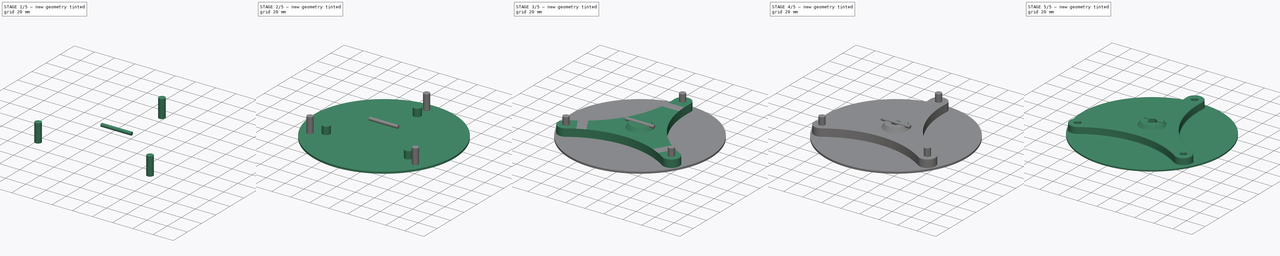
[diagram: build sequence overview — one tinted view per stage of 5, left to right]
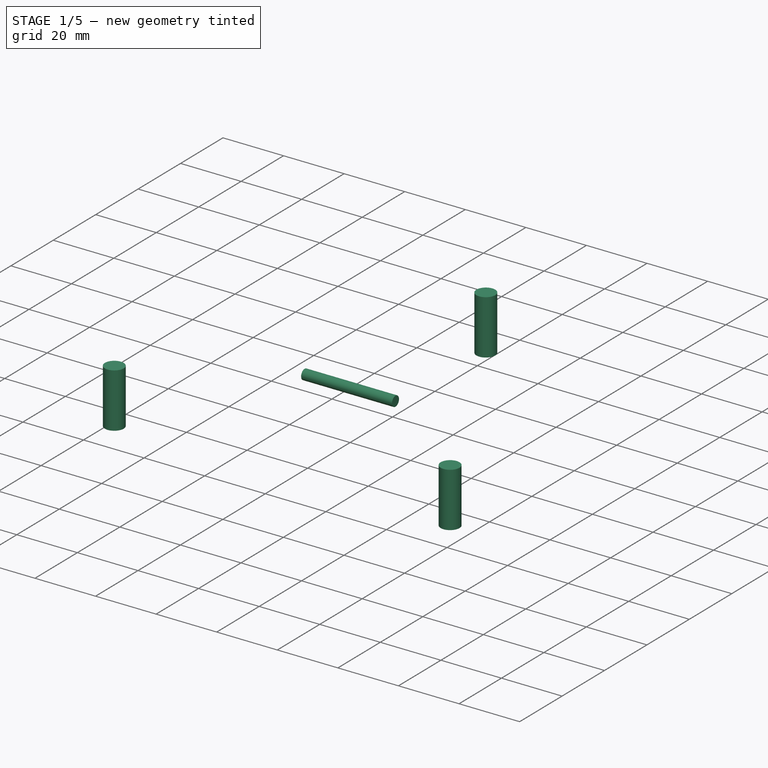
[diagram: stage 1 of 5 — iso view after this stage's code; geometry added in this stage tinted green]
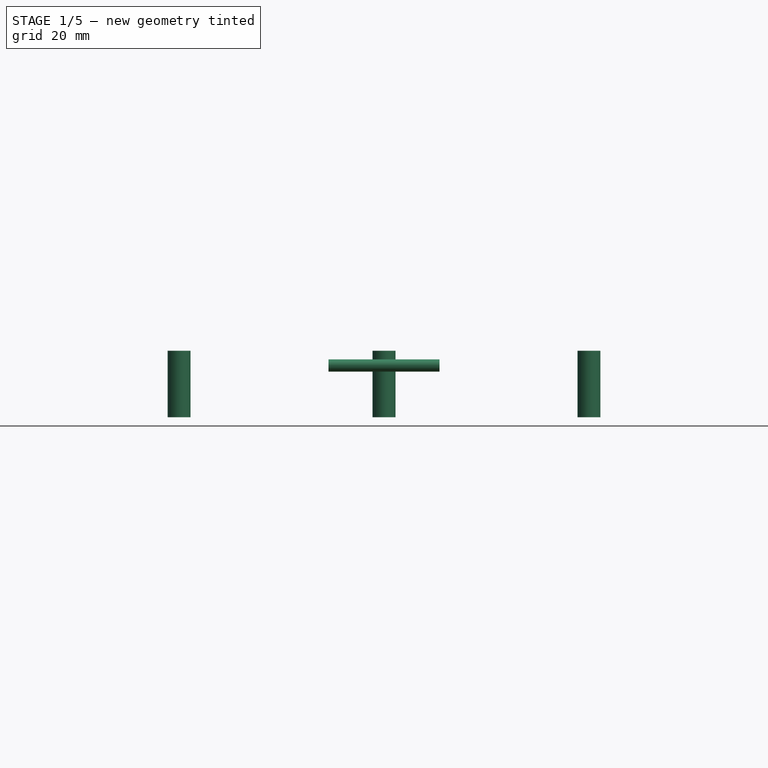
[diagram: stage 1 of 5 — front view after this stage's code; geometry added in this stage tinted green]
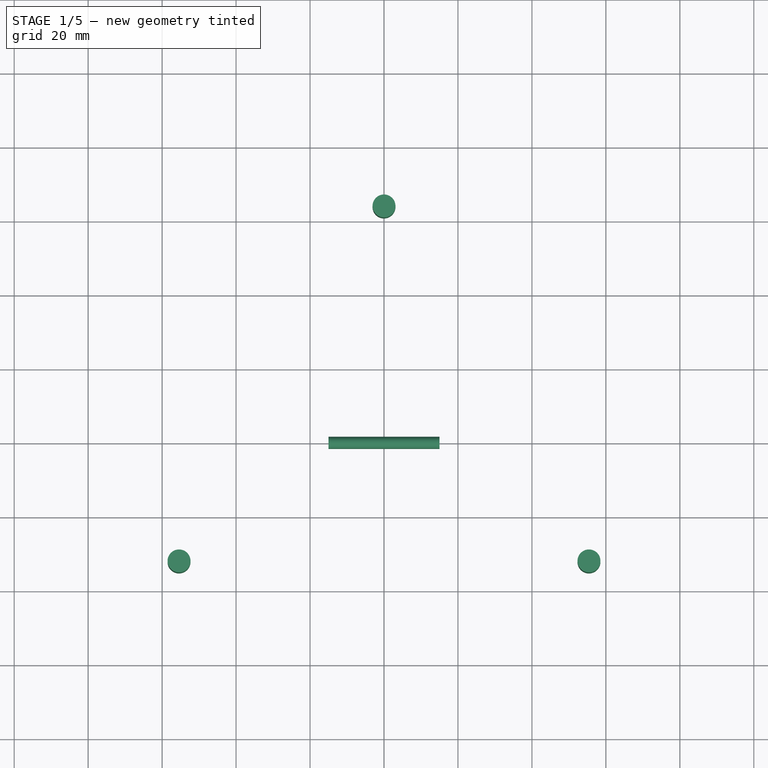
[diagram: stage 1 of 5 — top view after this stage's code; geometry added in this stage tinted green]
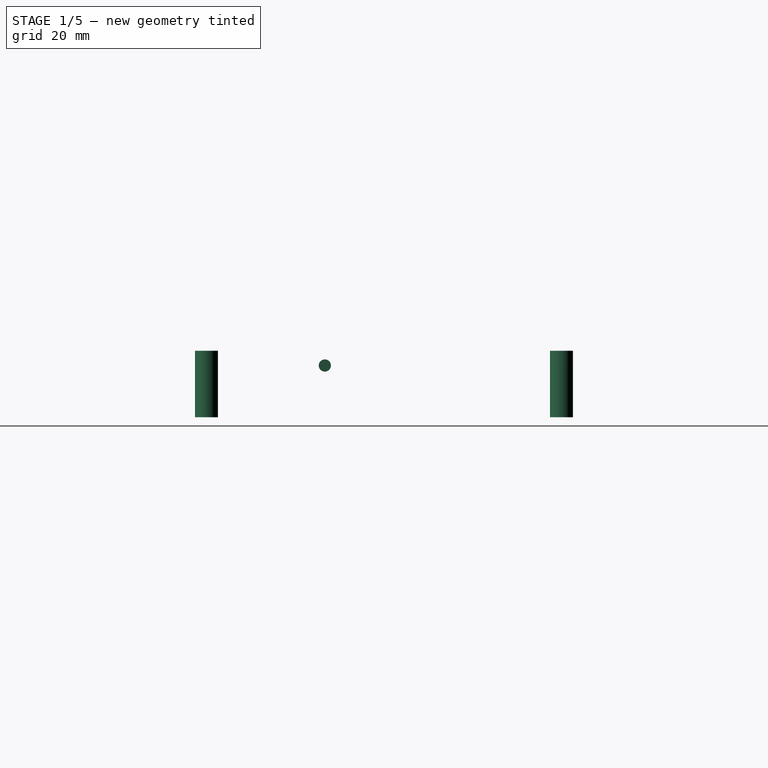
[diagram: stage 1 of 5 — right view after this stage's code; geometry added in this stage tinted green]
FCSTD DOCUMENT  (FreeCAD 0.17R13522 (Git))
Label: portacuchillas_grande
License: All rights reserved
LicenseURL: http://en.wikipedia.org/wiki/All_rights_reserved
objects: Part::Cylinder×5, Part::MultiFuse×3, Part::Cut×3, Part::FeaturePython×2, Part::Fillet×2, Sketcher::SketchObject×1, PartDesign::Pad×1, Part::Cone×1, PartDesign::ShapeBinder×1, PartDesign::Body×1, Part::Chamfer×1
note: 22 computed .brp shape members not serialized (recipe doc carries the construction recipe); baked Part::Feature solids carry a one-line shape summary decoded from their .brp

FEATURE [Part::Cylinder] Cylinder003  label="Cilindro003"
  Angle = 360
  AttacherType = Attacher::AttachEngine3D
  Height = 30
  Placement = pos=(-15,0,14) rot=(0,1,0;1.5708rad)
  Radius = 1.65
FEATURE [Part::Cylinder] Cylinder004  label="Cilindro004"
  Angle = 360
  AttacherType = Attacher::AttachEngine3D
  Height = 18
  Placement = pos=(0,64,0) rot=(0,0,1;0rad)
  Radius = 3.1
FEATURE [Part::FeaturePython] Array001  # Draft array (typed FeaturePython)
  Angle = 360
  ArrayType = 1
  Axis = (0,0,1)
  Base = -> Cylinder004
  Center = (0,0,0)
  Fuse = false
  IntervalAxis = (0,0,0)
  IntervalX = (1,0,0)
  IntervalY = (0,1,0)
  IntervalZ = (0,0,0)
  NumberPolar = 3
  NumberX = 2
  NumberY = 2
  NumberZ = 1
FEATURE [Part::MultiFuse] Fusion002
  Refine = true
  Shapes = -> [Array001,Cylinder003]
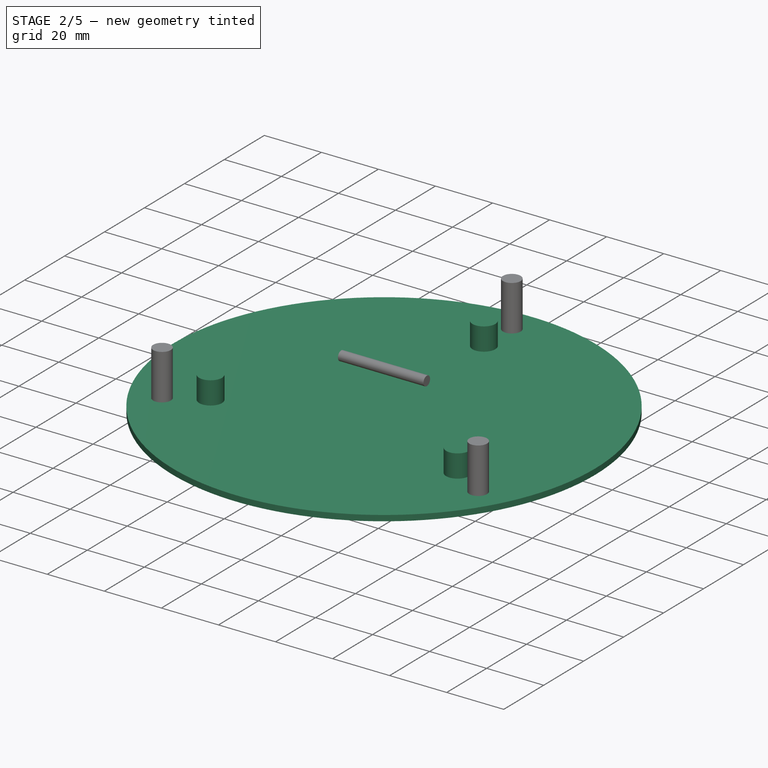
[diagram: stage 2 of 5 — iso view after this stage's code; geometry added in this stage tinted green]
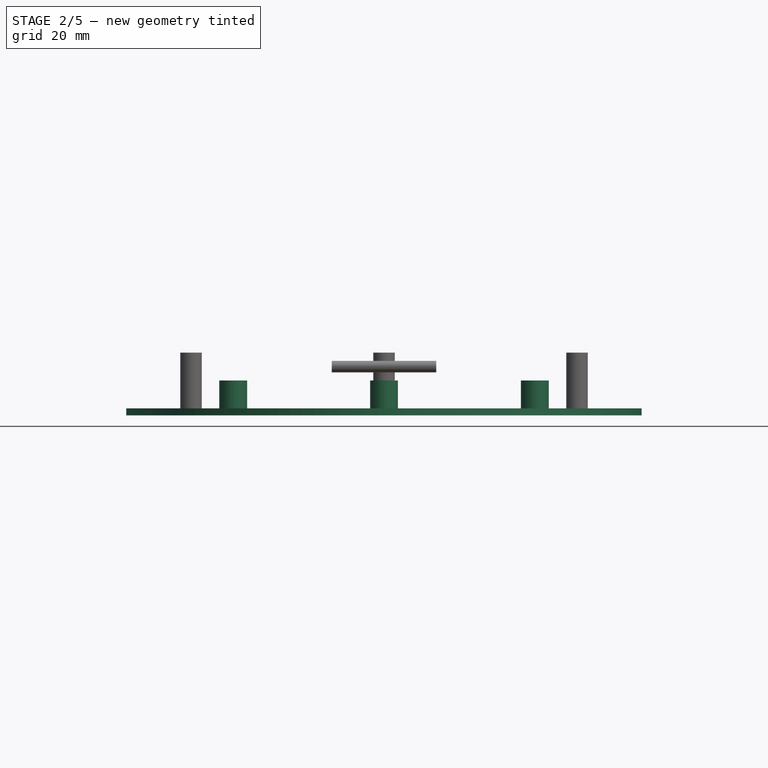
[diagram: stage 2 of 5 — front view after this stage's code; geometry added in this stage tinted green]
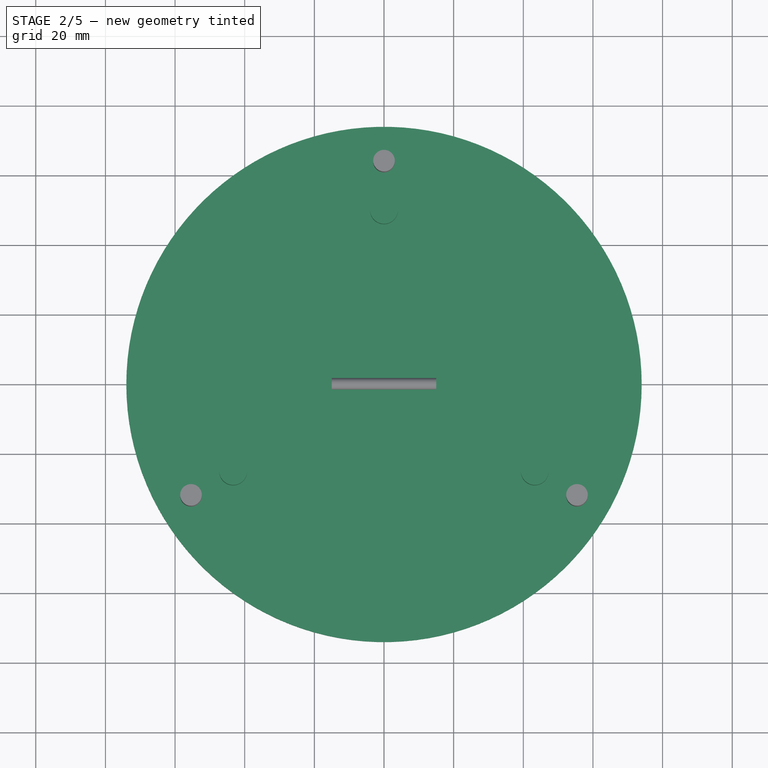
[diagram: stage 2 of 5 — top view after this stage's code; geometry added in this stage tinted green]
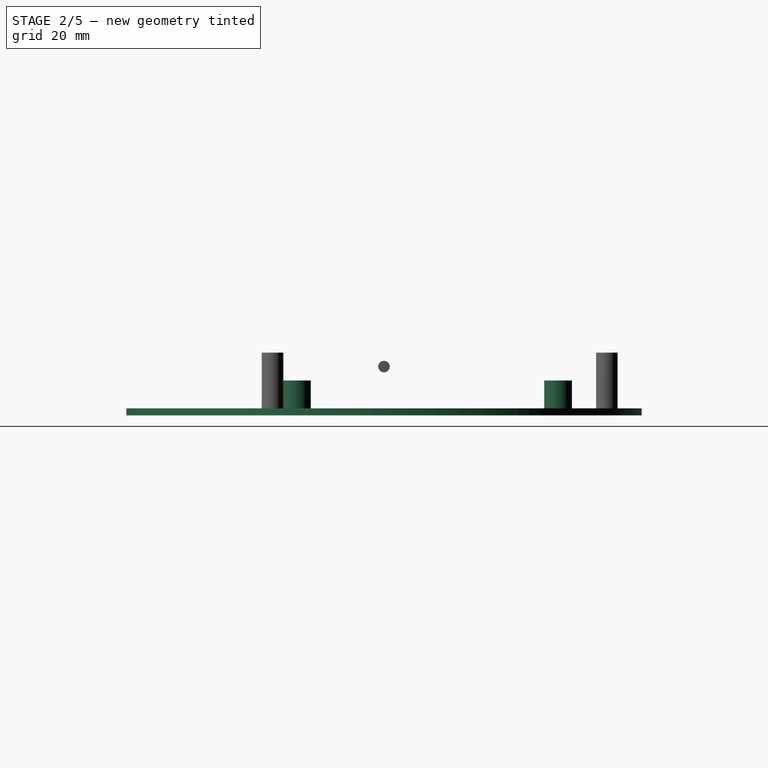
[diagram: stage 2 of 5 — right view after this stage's code; geometry added in this stage tinted green]
FEATURE [Part::Cylinder] Cylinder001  label="Cilindro001"
  Angle = 360
  AttacherType = Attacher::AttachEngine3D
  Height = 2
  Radius = 74
FEATURE [Part::Cylinder] Cylinder002  label="Cilindro002"
  Angle = 360
  AttacherType = Attacher::AttachEngine3D
  Height = 10
  Placement = pos=(0,50,0) rot=(0,0,1;0rad)
  Radius = 4
FEATURE [Part::FeaturePython] Array  # Draft array (typed FeaturePython)
  Angle = 360
  ArrayType = 1
  Axis = (0,0,1)
  Base = -> Cylinder002
  Center = (0,0,0)
  Fuse = false
  IntervalAxis = (0,0,0)
  IntervalX = (1,0,0)
  IntervalY = (0,1,0)
  IntervalZ = (0,0,0)
  NumberPolar = 3
  NumberX = 2
  NumberY = 2
  NumberZ = 1
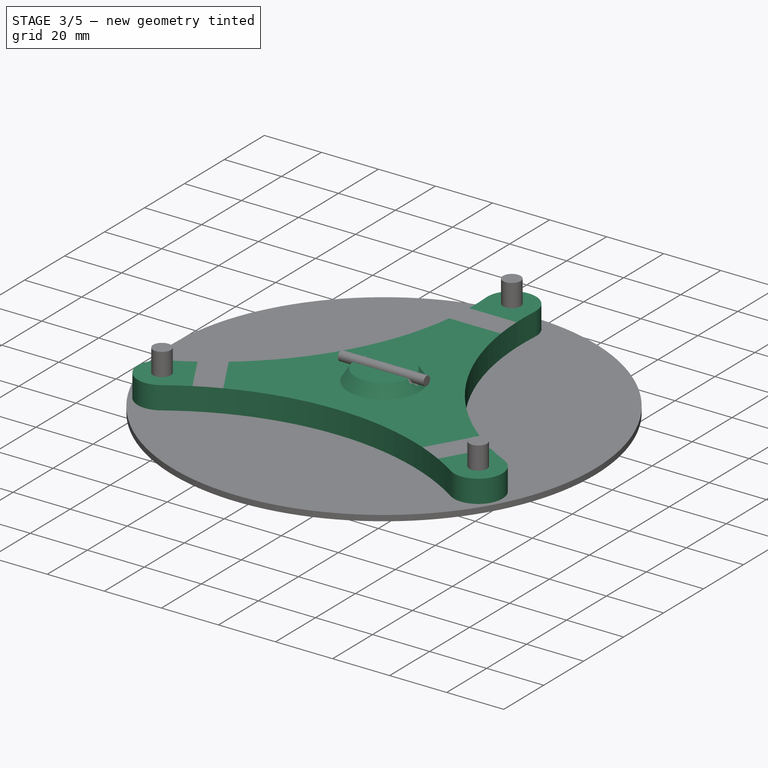
[diagram: stage 3 of 5 — iso view after this stage's code; geometry added in this stage tinted green]
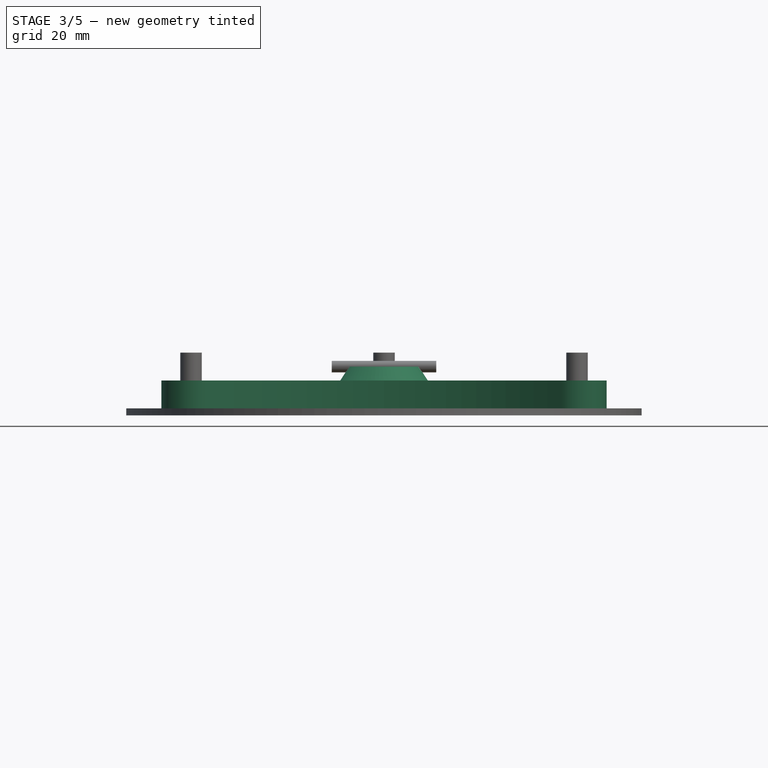
[diagram: stage 3 of 5 — front view after this stage's code; geometry added in this stage tinted green]
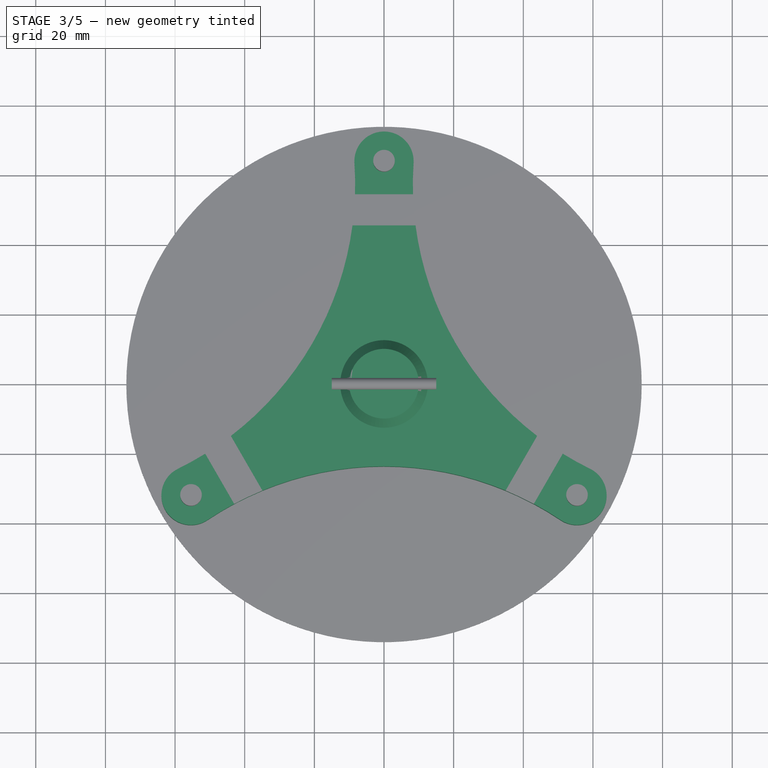
[diagram: stage 3 of 5 — top view after this stage's code; geometry added in this stage tinted green]
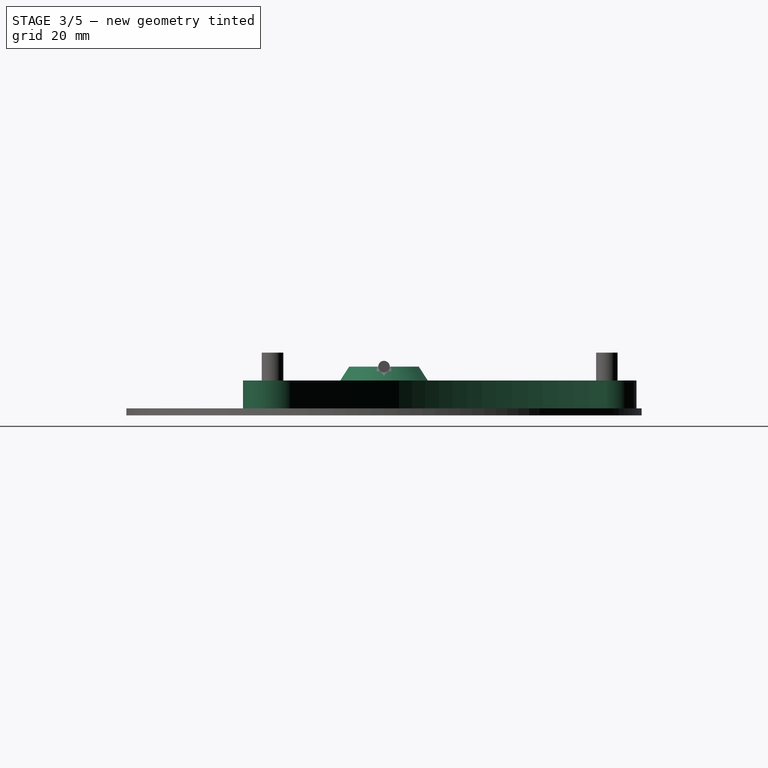
[diagram: stage 3 of 5 — right view after this stage's code; geometry added in this stage tinted green]
FEATURE [Sketcher::SketchObject] Sketch
  MapMode = 5
  Support = -> [XY_Plane]
  sketch-geometry (13):
    g0: Circle [constr] CenterX=0 CenterY=0 CenterZ=0 NormalX=0 NormalY=0 NormalZ=1 AngleXU=0 Radius=64
    g1: LineSegment [constr] StartX=-55.4256 StartY=-32 StartZ=0 EndX=0 EndY=64 EndZ=0
    g2: LineSegment [constr] StartX=0 StartY=64 StartZ=0 EndX=55.4256 EndY=-32 EndZ=0
    g3: LineSegment [constr] StartX=55.4256 StartY=-32 StartZ=0 EndX=-55.4256 EndY=-32 EndZ=0
    g4: Circle CenterX=0 CenterY=64 CenterZ=0 NormalX=0 NormalY=0 NormalZ=1 AngleXU=0 Radius=3.1
    g5: Circle CenterX=55.4256 CenterY=-32 CenterZ=0 NormalX=0 NormalY=0 NormalZ=1 AngleXU=0 Radius=3.1
    g6: Circle CenterX=-55.4256 CenterY=-32 CenterZ=0 NormalX=0 NormalY=0 NormalZ=1 AngleXU=0 Radius=3.1
    g7: ArcOfCircle CenterX=0 CenterY=64 CenterZ=0 NormalX=0 NormalY=0 NormalZ=1 AngleXU=0 Radius=8.5 StartAngle=6.21673 EndAngle=9.49123
    g8: ArcOfCircle CenterX=55.4256 CenterY=-32 CenterZ=0 NormalX=0 NormalY=0 NormalZ=1 AngleXU=0 Radius=8.5 StartAngle=4.12234 EndAngle=7.39684
    g9: ArcOfCircle CenterX=-55.4256 CenterY=-32 CenterZ=0 NormalX=0 NormalY=0 NormalZ=1 AngleXU=0 Radius=8.5 StartAngle=2.02794 EndAngle=5.30244
    g10: ArcOfCircle CenterX=-99.3938 CenterY=57.385 CenterZ=0 NormalX=0 NormalY=0 NormalZ=1 AngleXU=0 Radius=91.1137 StartAngle=5.16953 EndAngle=6.34964
    g11: ArcOfCircle CenterX=0 CenterY=-114.77 CenterZ=0 NormalX=0 NormalY=0 NormalZ=1 AngleXU=0 Radius=91.1137 StartAngle=0.980742 EndAngle=2.16085
    g12: ArcOfCircle CenterX=99.3938 CenterY=57.385 CenterZ=0 NormalX=0 NormalY=0 NormalZ=1 AngleXU=0 Radius=91.1137 StartAngle=3.07514 EndAngle=4.25525
  constraints (35):
    c: Coincident(g0,g-1)
    c: Radius(g0) = 64
    c: PointOnObject(g1,g0)
    c: PointOnObject(g1,g0)
    c: Coincident(g1,g2)
    c: PointOnObject(g2,g0)
    c: Coincident(g2,g3)
    c: Coincident(g3,g1)
    c: Horizontal(g3)
    c: Equal(g3,g1)
    c: Equal(g1,g2)
    c: Coincident(g4,g1)
    c: Coincident(g5,g2)
    c: Coincident(g6,g1)
    c: Radius(g6) = 3.1
    c: Equal(g6,g4)
    c: Equal(g6,g5)
    c: Coincident(g7,g1)
    c: PointOnObject(g7,g0)
    c: PointOnObject(g7,g0)
    c: Coincident(g8,g2)
    c: PointOnObject(g8,g0)
    c: PointOnObject(g8,g0)
    c: Coincident(g9,g1)
    c: PointOnObject(g9,g0)
    c: PointOnObject(g9,g0)
    c: Radius(g7) = 8.5
    c: Equal(g7,g9)
    c: Equal(g7,g8)
    c: Coincident(g10,g9)
    c: Tangent(g10,g7) = 1.5708
    c: Coincident(g11,g8)
    c: Tangent(g11,g9) = 1.5708
    c: Coincident(g12,g8)
    c: Tangent(g12,g7) = 1.5708
FEATURE [PartDesign::Pad] Pad
  Length = 10
  Length2 = 100
  Profile = -> Sketch
  Refine = true
  Type = 0
FEATURE [Part::Cone] Cone  label="Cono"
  Angle = 360
  AttacherType = Attacher::AttachEngine3D
  Height = 14
  Radius1 = 19
  Radius2 = 10
FEATURE [Part::MultiFuse] Fusion
  Refine = true
  Shapes = -> [Pad,Cone]
FEATURE [Part::Cut] Cut
  Base = -> Cylinder001
  Refine = true
  Tool = -> Array
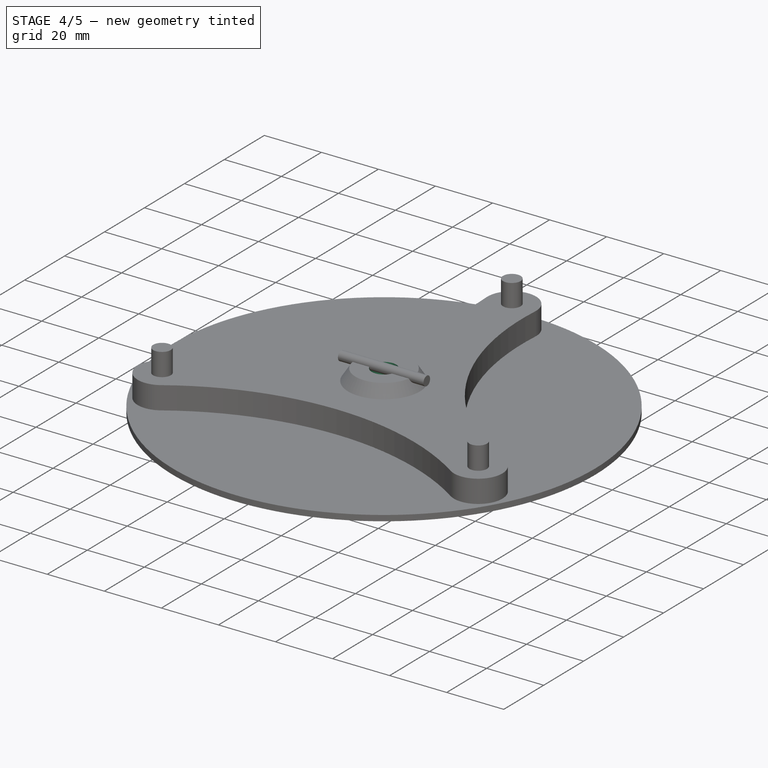
[diagram: stage 4 of 5 — iso view after this stage's code; geometry added in this stage tinted green]
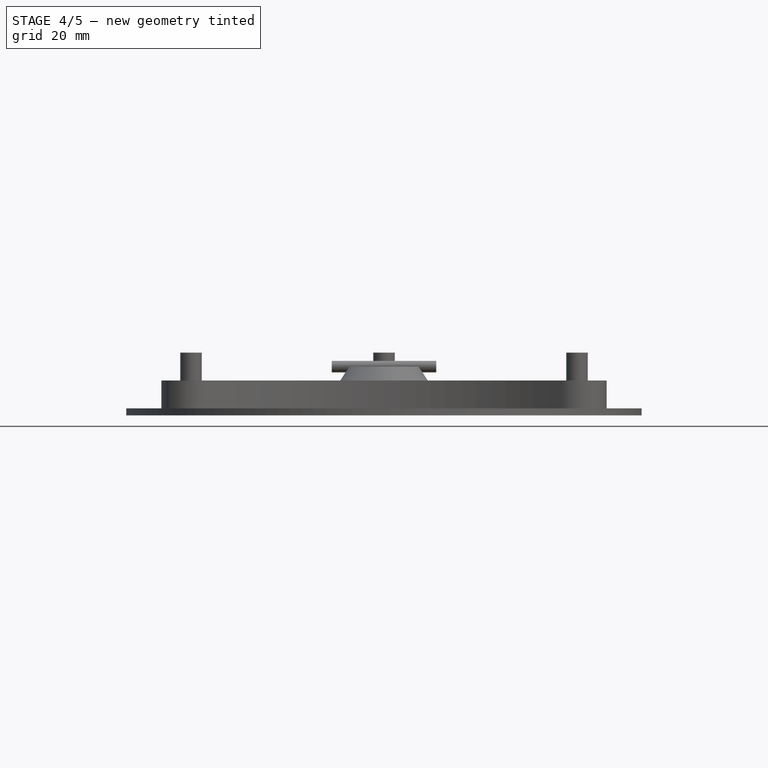
[diagram: stage 4 of 5 — front view after this stage's code; geometry added in this stage tinted green]
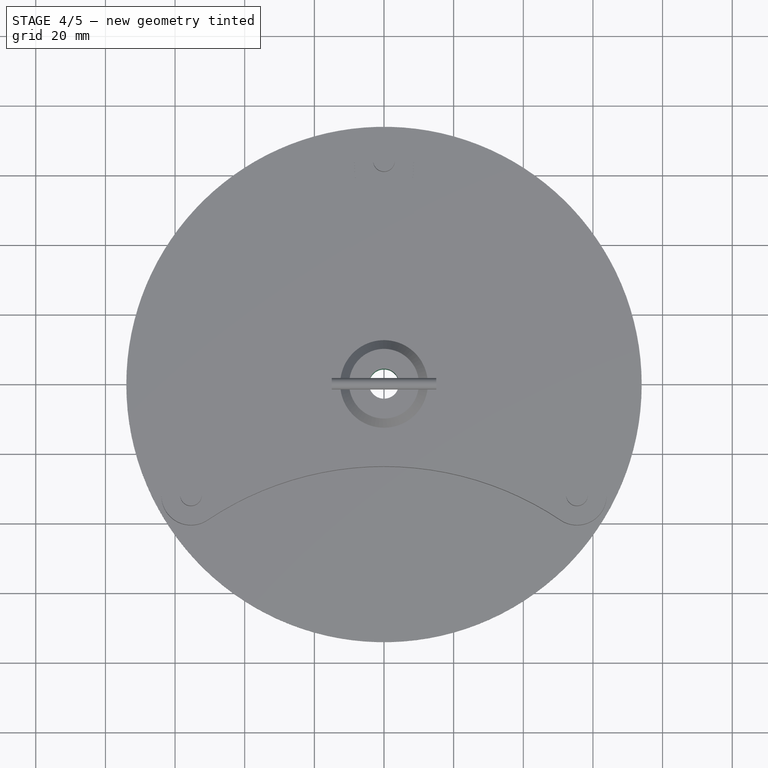
[diagram: stage 4 of 5 — top view after this stage's code; geometry added in this stage tinted green]
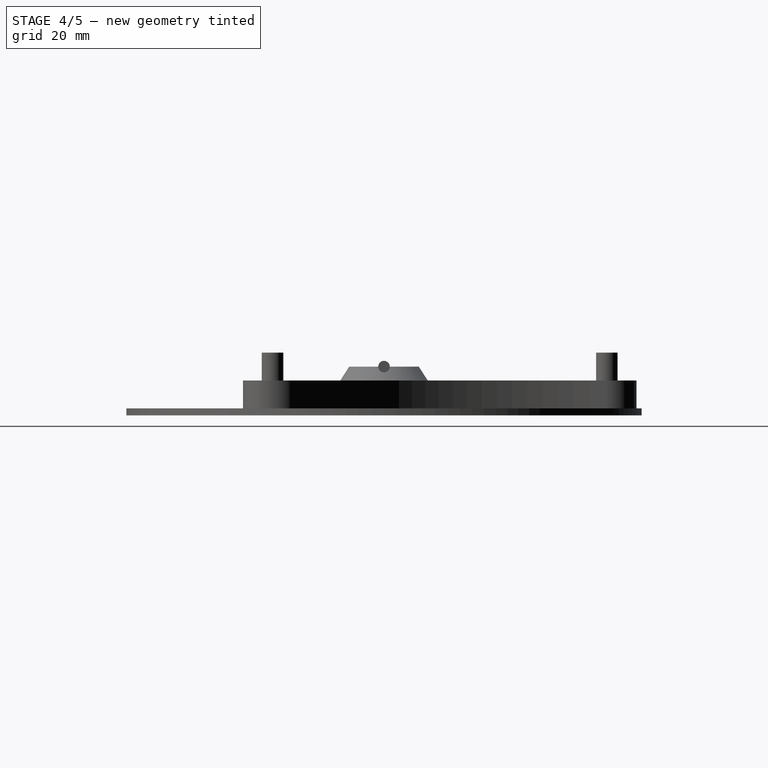
[diagram: stage 4 of 5 — right view after this stage's code; geometry added in this stage tinted green]
FEATURE [Part::Cylinder] Cylinder  label="Cilindro"
  Angle = 360
  AttacherType = Attacher::AttachEngine3D
  Height = 30
  Placement = pos=(0,0,-1) rot=(0,0,1;0rad)
  Radius = 4.3
FEATURE [Part::MultiFuse] Fusion001
  Refine = true
  Shapes = -> [Cut,Fusion]
FEATURE [Part::Cut] Cut001
  Base = -> Fusion001
  Refine = true
  Tool = -> Cylinder
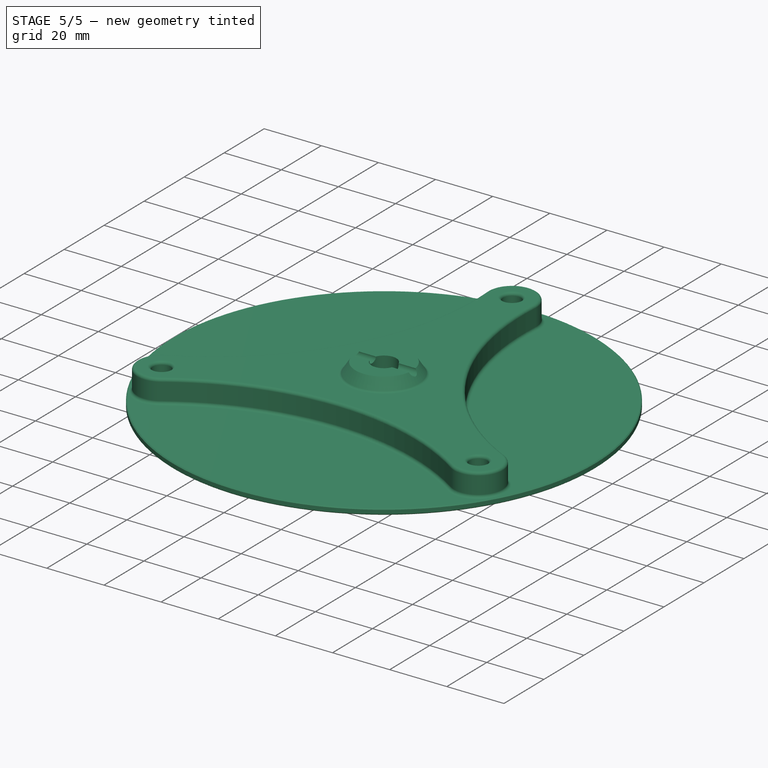
[diagram: stage 5 of 5 — iso view after this stage's code; geometry added in this stage tinted green]
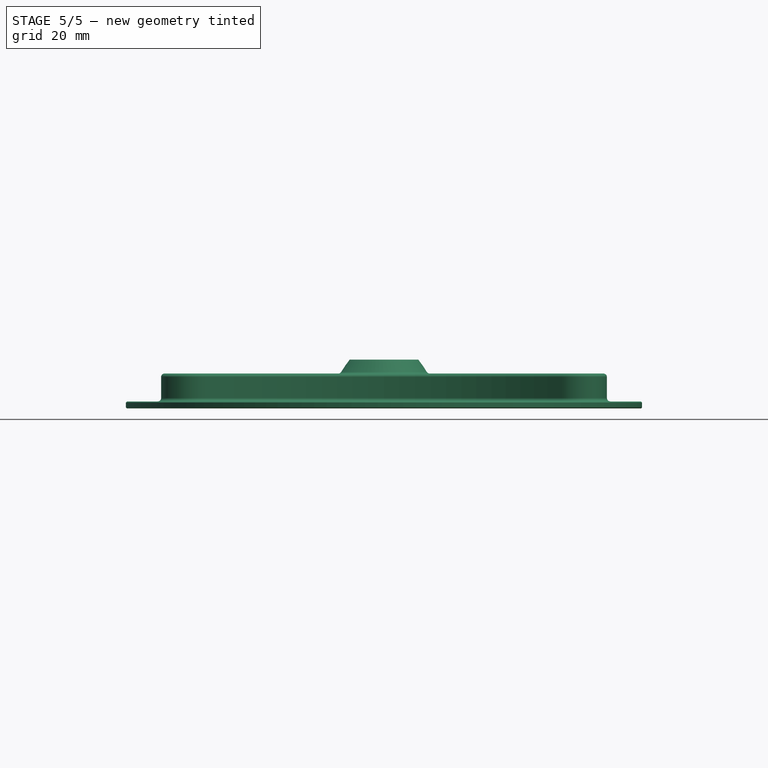
[diagram: stage 5 of 5 — front view after this stage's code; geometry added in this stage tinted green]
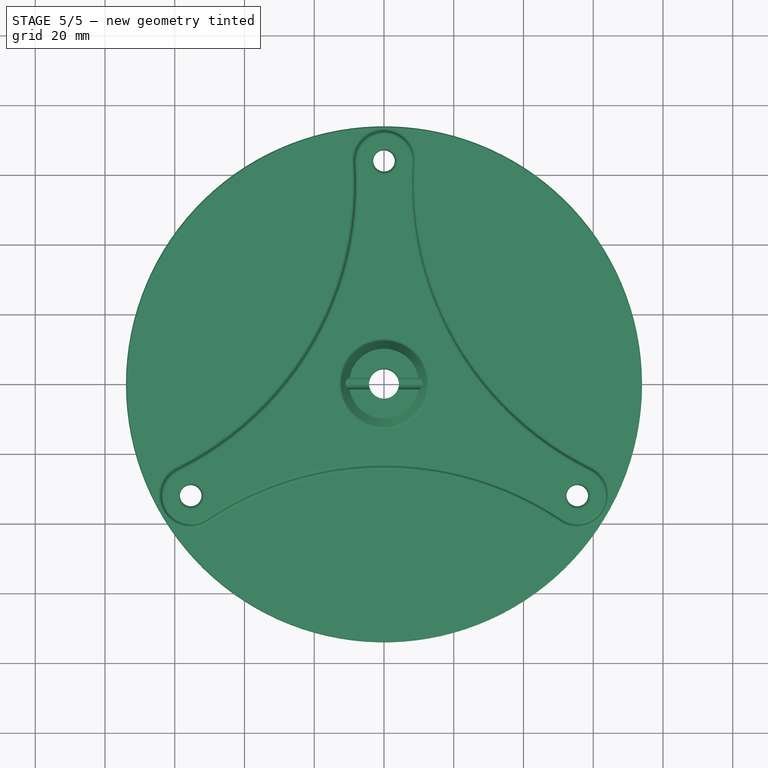
[diagram: stage 5 of 5 — top view after this stage's code; geometry added in this stage tinted green]
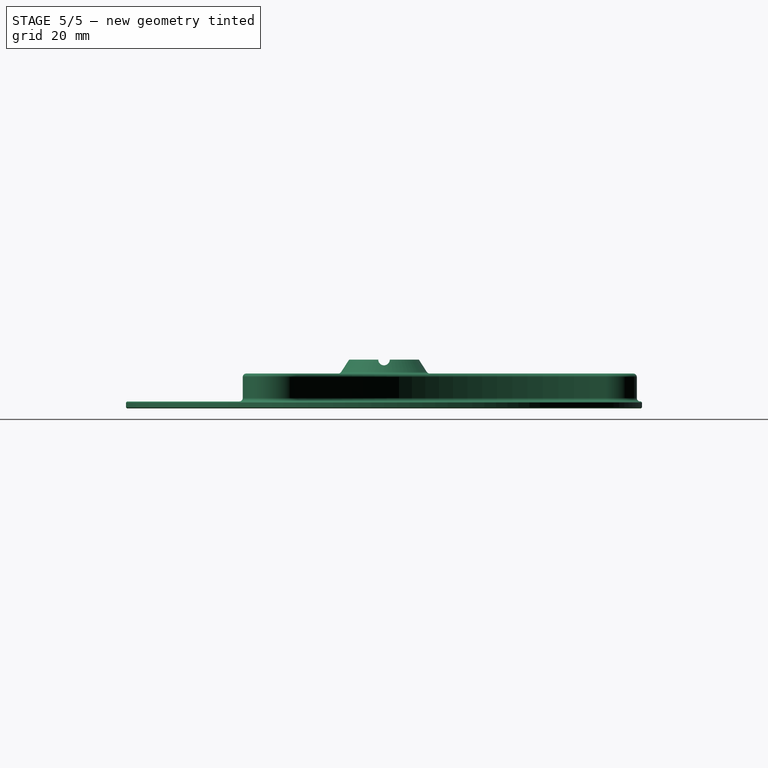
[diagram: stage 5 of 5 — right view after this stage's code; geometry added in this stage tinted green]
FEATURE [Part::Fillet] Fillet
  Base = -> Cut001
  Edges = 3 edges r=1: [Edge4,Edge6,Edge8]
FEATURE [PartDesign::ShapeBinder] CopyCut002001  label="CopyCut002"
FEATURE [PartDesign::Body] Body
  Group = -> [Sketch,Pad,CopyCut002001]
  Origin = -> Origin
  Tip = -> Pad
FEATURE [Part::Fillet] Fillet001
  Base = -> Fillet
  Edges = 10 edges r=1: [Edge23,Edge25,Edge28,Edge30,Edge31,Edge33,Edge35,Edge36,Edge37,Edge38]
FEATURE [Part::Cut] Cut002
  Base = -> Fillet001
  Refine = true
  Tool = -> Fusion002
FEATURE [Part::Chamfer] Chamfer
  Base = -> Cut002
  Edges = 6 edges: [Edge37 r=0.3,Edge59 r=0.3,Edge67 r=0.6,Edge68 r=0.3,Edge69 r=0.3,Edge70 r=0.3]
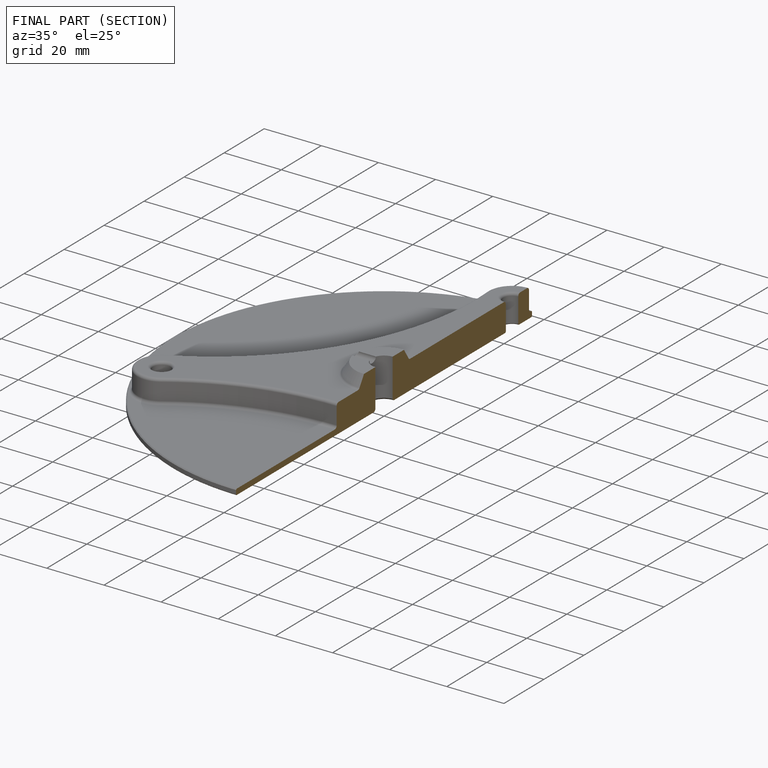
[diagram: finished part — half-section view (interior)]
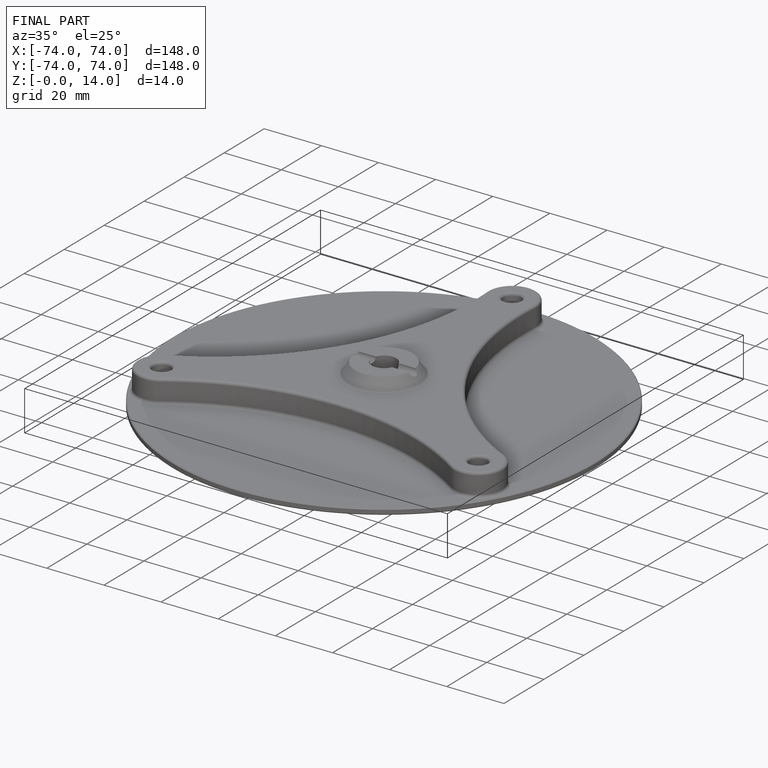
[diagram: finished part — iso view with bounding-box wireframe]
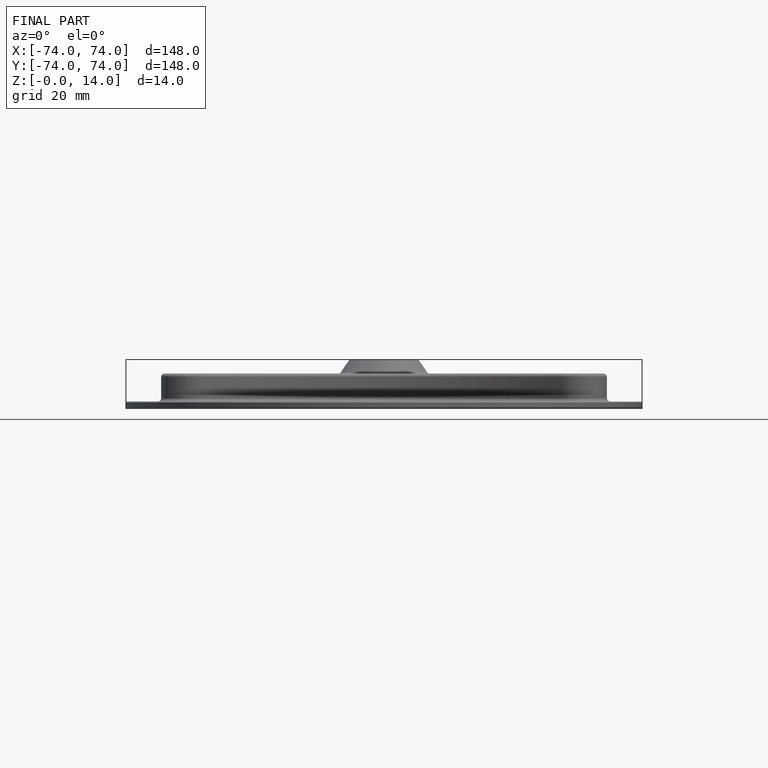
[diagram: finished part — front view with bounding-box wireframe]
